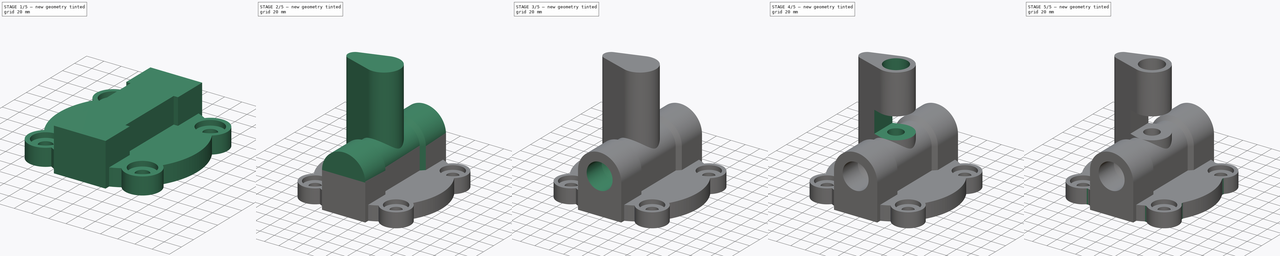
[diagram: build sequence overview — one tinted view per stage of 5, left to right]
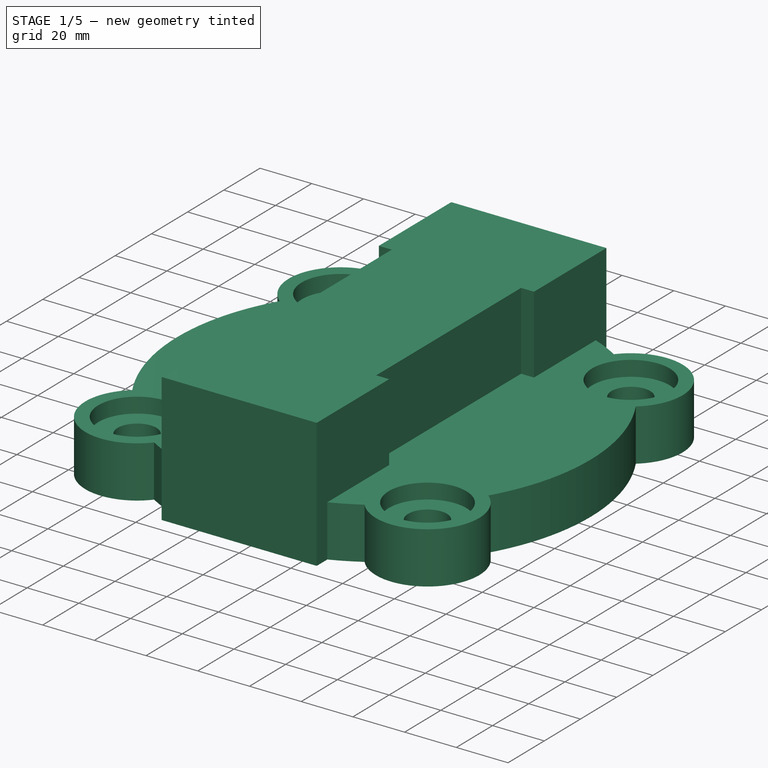
[diagram: stage 1 of 5 — iso view after this stage's code; geometry added in this stage tinted green]
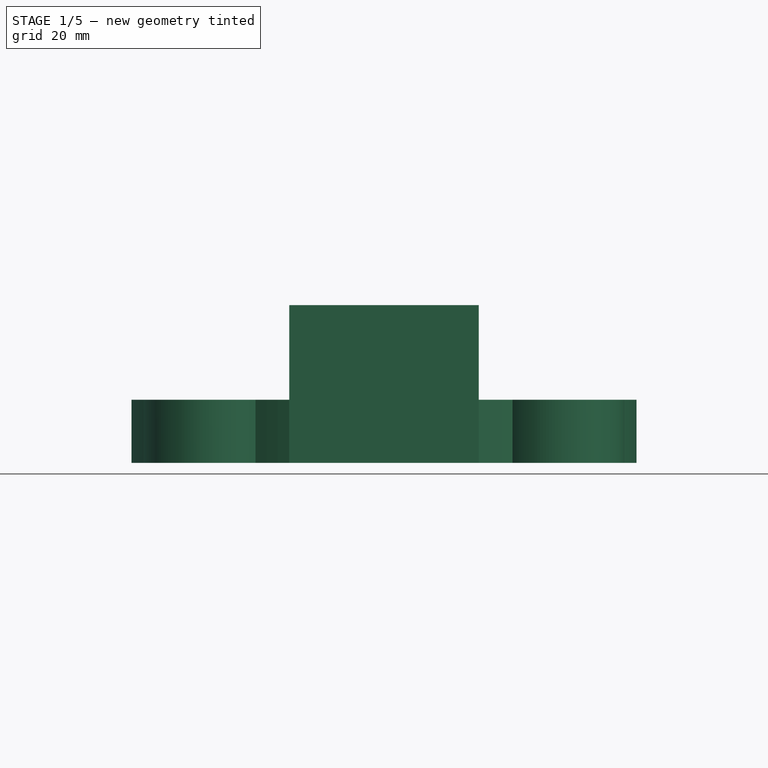
[diagram: stage 1 of 5 — front view after this stage's code; geometry added in this stage tinted green]
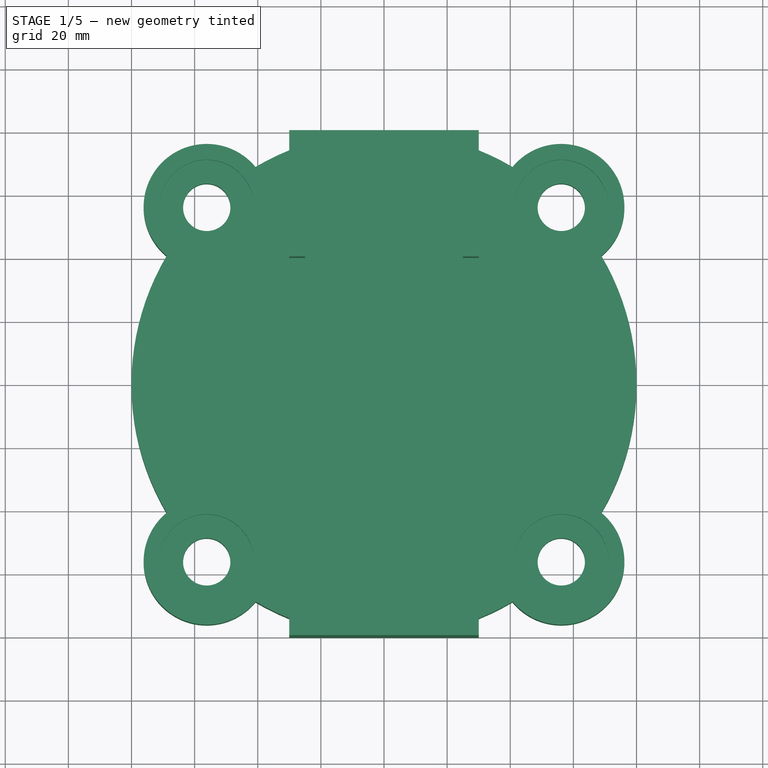
[diagram: stage 1 of 5 — top view after this stage's code; geometry added in this stage tinted green]
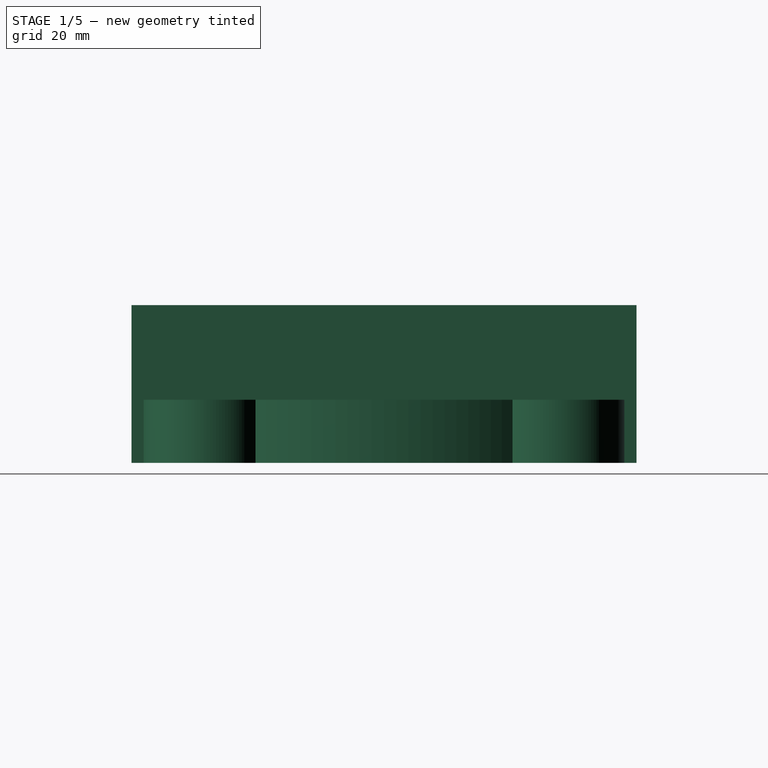
[diagram: stage 1 of 5 — right view after this stage's code; geometry added in this stage tinted green]
FCSTD DOCUMENT  (FreeCAD 0.21R33771 (Git))
Label: ex50
License: All rights reserved
LicenseURL: https://en.wikipedia.org/wiki/All_rights_reserved
objects: Sketcher::SketchObject×14, PartDesign::Pocket×6, PartDesign::Pad×4, PartDesign::Chamfer×3, PartDesign::Fillet×3, PartDesign::Groove×2, PartDesign::Hole×1, PartDesign::Revolution×1, PartDesign::Body×1
note: 55 computed .brp shape members not serialized (recipe doc carries the construction recipe); baked Part::Feature solids carry a one-line shape summary decoded from their .brp

FEATURE [Sketcher::SketchObject] Sketch
  FullyConstrained = true
  MapMode = 5
  Support = -> [XY_Plane]
  sketch-geometry (1):
    g0: Circle CenterX=0 CenterY=0 CenterZ=0 NormalX=0 NormalY=0 NormalZ=1 AngleXU=0 Radius=80
  constraints (2):
    c: Coincident(g0,g-1)
    c: Radius(g0) = 80
FEATURE [PartDesign::Pad] Pad
  Direction = (0,0,1)
  Length = 20
  Length2 = 10
  Profile = -> Sketch
  ReferenceAxis = -> Sketch [N_Axis]
  Type = 0
FEATURE [Sketcher::SketchObject] Sketch001
  FullyConstrained = false
  MapMode = 5
  Placement = pos=(0,0,20) rot=(0,0,1;0rad)
  Support = -> [Pad]
  sketch-geometry (9):
    g0: LineSegment StartX=-56.1633 StartY=56.1633 StartZ=0 EndX=-56.1633 EndY=-56.1633 EndZ=0
    g1: LineSegment StartX=-56.1633 StartY=-56.1633 StartZ=0 EndX=56.1633 EndY=-56.1633 EndZ=0
    g2: LineSegment StartX=56.1633 StartY=-56.1633 StartZ=0 EndX=56.1633 EndY=56.1633 EndZ=0
    g3: LineSegment StartX=56.1633 StartY=56.1633 StartZ=0 EndX=-56.1633 EndY=56.1633 EndZ=0
    g4: GeomPoint X=0 Y=0 Z=0
    g5: Circle CenterX=56.1633 CenterY=-56.1633 CenterZ=0 NormalX=0 NormalY=0 NormalZ=1 AngleXU=0 Radius=20
    g6: Circle CenterX=-56.1633 CenterY=-56.1633 CenterZ=0 NormalX=0 NormalY=0 NormalZ=1 AngleXU=0 Radius=20
    g7: Circle CenterX=-56.1633 CenterY=56.1633 CenterZ=0 NormalX=0 NormalY=0 NormalZ=1 AngleXU=0 Radius=20
    g8: Circle CenterX=56.1633 CenterY=56.1633 CenterZ=0 NormalX=0 NormalY=0 NormalZ=1 AngleXU=0 Radius=20
  constraints (19):
    c: Coincident(g0,g1)
    c: Coincident(g1,g2)
    c: Coincident(g2,g3)
    c: Coincident(g3,g0)
    c: Horizontal(g1)
    c: Horizontal(g3)
    c: Vertical(g0)
    c: Vertical(g2)
    c: Symmetric(g1,g0,g4)
    c: Coincident(g4,g-1)
    c: Equal(g2,g1)
    c: Coincident(g5,g1)
    c: Coincident(g6,g0)
    c: Coincident(g7,g0)
    c: Coincident(g8,g2)
    c: Equal(g8,g7)
    c: Equal(g7,g6)
    c: Equal(g6,g5)
    c: Radius(g8) = 20
FEATURE [PartDesign::Pad] Pad001
  BaseFeature = -> Pad
  Direction = (0,0,1)
  Length = 20
  Length2 = 10
  Profile = -> Sketch001
  ReferenceAxis = -> Sketch001 [N_Axis]
  Reversed = true
  Type = 0
FEATURE [Sketcher::SketchObject] Sketch002
  FullyConstrained = false
  MapMode = 5
  Placement = pos=(0,0,20) rot=(0,0,1;0rad)
  Support = -> [Pad]
  sketch-geometry (9):
    g0: LineSegment StartX=-56.1633 StartY=56.1633 StartZ=0 EndX=-56.1633 EndY=-56.1633 EndZ=0
    g1: LineSegment StartX=-56.1633 StartY=-56.1633 StartZ=0 EndX=56.1633 EndY=-56.1633 EndZ=0
    g2: LineSegment StartX=56.1633 StartY=-56.1633 StartZ=0 EndX=56.1633 EndY=56.1633 EndZ=0
    g3: LineSegment StartX=56.1633 StartY=56.1633 StartZ=0 EndX=-56.1633 EndY=56.1633 EndZ=0
    g4: GeomPoint X=0 Y=0 Z=0
    g5: Circle CenterX=56.1633 CenterY=-56.1633 CenterZ=0 NormalX=0 NormalY=0 NormalZ=1 AngleXU=0 Radius=7.5
    g6: Circle CenterX=-56.1633 CenterY=-56.1633 CenterZ=0 NormalX=0 NormalY=0 NormalZ=1 AngleXU=0 Radius=7.5
    g7: Circle CenterX=-56.1633 CenterY=56.1633 CenterZ=0 NormalX=0 NormalY=0 NormalZ=1 AngleXU=0 Radius=7.5
    g8: Circle CenterX=56.1633 CenterY=56.1633 CenterZ=0 NormalX=0 NormalY=0 NormalZ=1 AngleXU=0 Radius=7.5
  constraints (19):
    c: Coincident(g0,g1)
    c: Coincident(g1,g2)
    c: Coincident(g2,g3)
    c: Coincident(g3,g0)
    c: Horizontal(g1)
    c: Horizontal(g3)
    c: Vertical(g0)
    c: Vertical(g2)
    c: Symmetric(g1,g0,g4)
    c: Coincident(g4,g-1)
    c: Equal(g2,g1)
    c: Coincident(g5,g1)
    c: Coincident(g6,g0)
    c: Coincident(g7,g0)
    c: Coincident(g8,g2)
    c: Equal(g8,g7)
    c: Equal(g7,g6)
    c: Equal(g6,g5)
    c: Radius(g8) = 7.5
FEATURE [PartDesign::Hole] Hole
  BaseFeature = -> Pad001
  CustomThreadClearance = 0
  Depth = 25
  DepthType = 0
  Diameter = 15
  DrillForDepth = false
  DrillPoint = 1
  DrillPointAngle = 118
  HoleCutCountersinkAngle = 90
  HoleCutCustomValues = false
  HoleCutDepth = 5.9
  HoleCutDiameter = 30
  HoleCutType = 1
  ModelThread = false
  Profile = -> Sketch002
  Tapered = false
  TaperedAngle = 90
  ThreadClass = 0
  ThreadDepth = 25
  ThreadDepthType = 0
  ThreadDirection = 0
  ThreadFit = 0
  ThreadSize = 0
  ThreadType = 0
  Threaded = false
  UseCustomThreadClearance = false
FEATURE [Sketcher::SketchObject] Sketch003
  FullyConstrained = false
  MapMode = 5
  Support = -> [XY_Plane]
  sketch-geometry (15):
    g0: LineSegment StartX=-30 StartY=80 StartZ=0 EndX=-30 EndY=40 EndZ=0
    g1: LineSegment StartX=-30 StartY=40 StartZ=0 EndX=-25 EndY=40 EndZ=0
    g2: LineSegment StartX=30 StartY=40 StartZ=0 EndX=30 EndY=80 EndZ=0
    g3: LineSegment StartX=30 StartY=80 StartZ=0 EndX=-30 EndY=80 EndZ=0
    g4: GeomPoint X=0 Y=60 Z=0
    g5: LineSegment StartX=-30 StartY=-40 StartZ=0 EndX=-30 EndY=-80 EndZ=0
    g6: LineSegment StartX=-30 StartY=-80 StartZ=0 EndX=30 EndY=-80 EndZ=0
    g7: LineSegment StartX=30 StartY=-80 StartZ=0 EndX=30 EndY=-40 EndZ=0
    g8: LineSegment StartX=30 StartY=-40 StartZ=0 EndX=25 EndY=-40 EndZ=0
    g9: GeomPoint X=0 Y=-60 Z=0
    g10: LineSegment StartX=-25 StartY=-40 StartZ=0 EndX=-25 EndY=40 EndZ=0
    g11: LineSegment StartX=25 StartY=40 StartZ=0 EndX=25 EndY=-40 EndZ=0
    g12: GeomPoint X=0 Y=-21.9019 Z=0
    g13: LineSegment StartX=-25 StartY=-40 StartZ=0 EndX=-30 EndY=-40 EndZ=0
    g14: LineSegment StartX=25 StartY=40 StartZ=0 EndX=30 EndY=40 EndZ=0
  constraints (38):
    c: Coincident(g0,g1)
    c: Coincident(g14,g2)
    c: Coincident(g2,g3)
    c: Coincident(g3,g0)
    c: Horizontal(g1)
    c: Horizontal(g3)
    c: Vertical(g0)
    c: Vertical(g2)
    c: Symmetric(g14,g0,g4)
    c: PointOnObject(g4,g-2)
    c: Coincident(g5,g6)
    c: Coincident(g6,g7)
    c: Coincident(g7,g8)
    c: Coincident(g13,g5)
    c: Horizontal(g6)
    c: Horizontal(g8)
    c: Vertical(g5)
    c: Vertical(g7)
    c: Symmetric(g6,g5,g9)
    c: PointOnObject(g9,g-2)
    c: Vertical(g11)
    c: PointOnObject(g12,g-2)
    c: Coincident(g10,g13)
    c: Coincident(g11,g8)
    c: Coincident(g11,g14)
    c: Coincident(g10,g1)
    c: Equal(g3,g6)
    c: Equal(g0,g5)
    c: Equal(g1,g14)
    c: Equal(g14,g8)
    c: Equal(g8,g13)
    c: Equal(g10,g11)
    c: Horizontal(g1,g11)
    c: Symmetric(g1,g10,g-1)
    c: DistanceY(g6,g2) = 160
    c: DistanceY(g7,g2) = 80
    c: DistanceX(g0,g2) = 60
    c: DistanceX(g1,g11) = 50
FEATURE [PartDesign::Pad] Pad002
  BaseFeature = -> Hole
  Direction = (0,0,1)
  Length = 50
  Length2 = 10
  Profile = -> Sketch003
  ReferenceAxis = -> Sketch003 [N_Axis]
  Type = 0
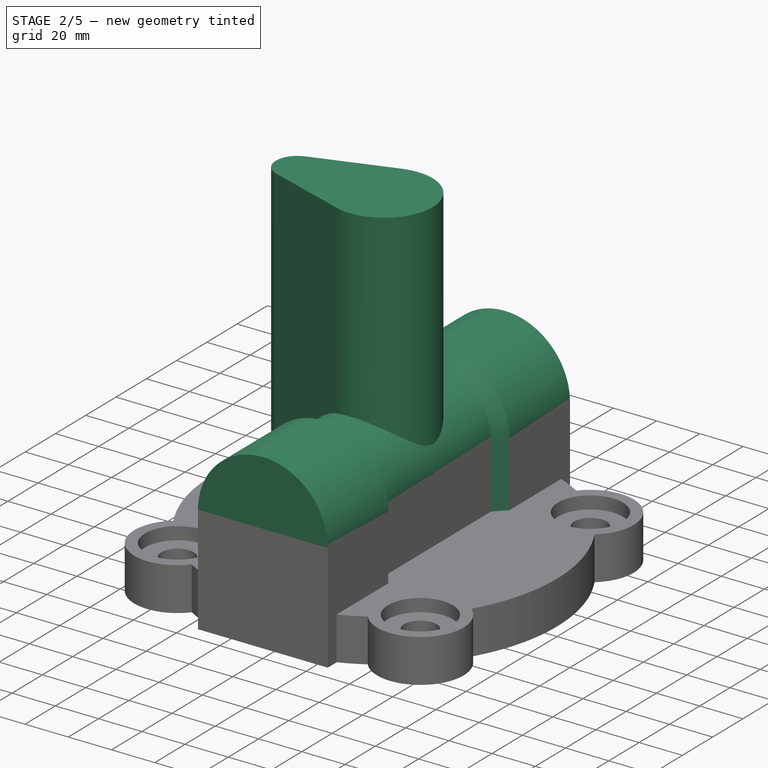
[diagram: stage 2 of 5 — iso view after this stage's code; geometry added in this stage tinted green]
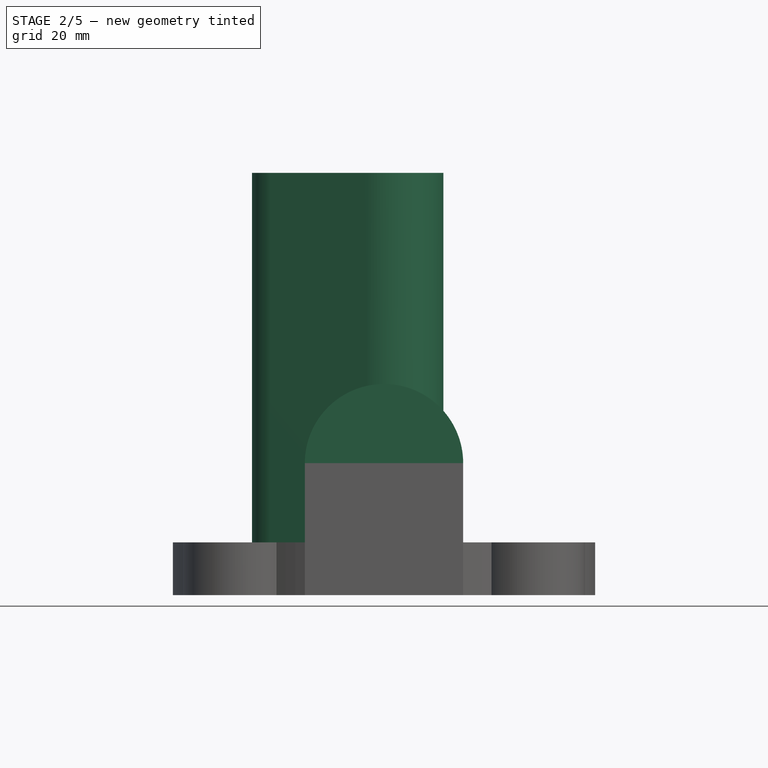
[diagram: stage 2 of 5 — front view after this stage's code; geometry added in this stage tinted green]
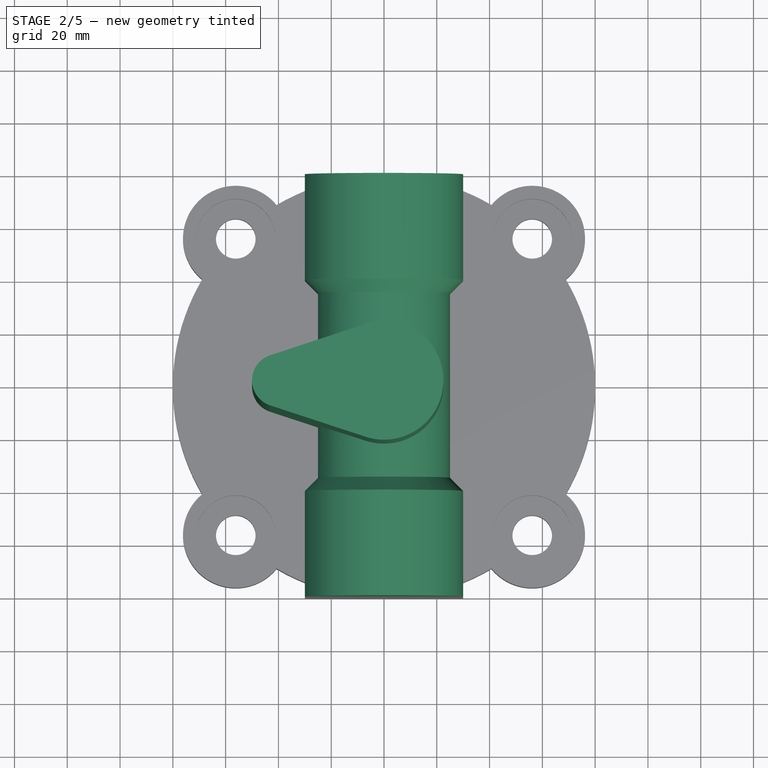
[diagram: stage 2 of 5 — top view after this stage's code; geometry added in this stage tinted green]
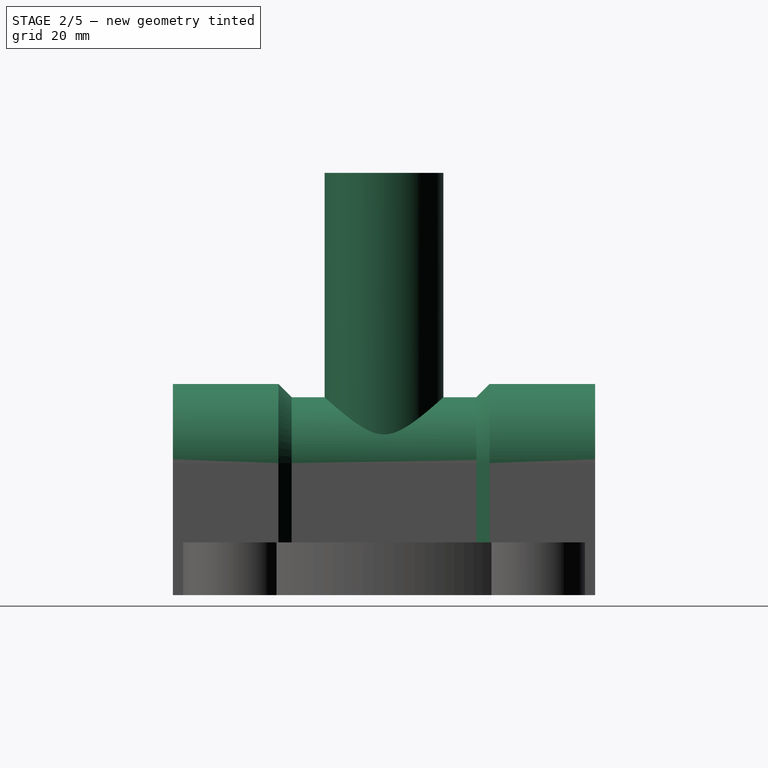
[diagram: stage 2 of 5 — right view after this stage's code; geometry added in this stage tinted green]
FEATURE [Sketcher::SketchObject] Sketch004
  ExternalGeometry = -> [Pad002]
  FullyConstrained = true
  MapMode = 5
  Placement = pos=(0,0,50) rot=(0,0,1;0rad)
  Support = -> [Pad002]
  sketch-geometry (8):
    g0: LineSegment StartX=30 StartY=80 StartZ=0 EndX=30 EndY=40 EndZ=0
    g1: LineSegment StartX=30 StartY=40 StartZ=0 EndX=25 EndY=40 EndZ=0
    g2: LineSegment StartX=25 StartY=40 StartZ=0 EndX=25 EndY=-40 EndZ=0
    g3: LineSegment StartX=25 StartY=-40 StartZ=0 EndX=30 EndY=-40 EndZ=0
    g4: LineSegment StartX=30 StartY=-40 StartZ=0 EndX=30 EndY=-80 EndZ=0
    g5: LineSegment StartX=30 StartY=-80 StartZ=0 EndX=0 EndY=-80 EndZ=0
    g6: LineSegment StartX=0 StartY=-80 StartZ=0 EndX=0 EndY=80 EndZ=0
    g7: LineSegment StartX=0 StartY=80 StartZ=0 EndX=30 EndY=80 EndZ=0
  constraints (18):
    c: Coincident(g-3,g0)
    c: Coincident(g0,g-4)
    c: Coincident(g0,g1)
    c: Coincident(g1,g-5)
    c: Coincident(g1,g2)
    c: Coincident(g2,g-6)
    c: Coincident(g2,g3)
    c: Coincident(g3,g-7)
    c: Coincident(g3,g4)
    c: Coincident(g4,g-7)
    c: Coincident(g4,g5)
    c: PointOnObject(g5,g-2)
    c: Horizontal(g5)
    c: Coincident(g5,g6)
    c: PointOnObject(g6,g-2)
    c: Coincident(g6,g7)
    c: Coincident(g7,g0)
    c: Horizontal(g7)
FEATURE [PartDesign::Revolution] Revolution
  Angle = 360
  Axis = (0,1,0)
  Base = (0,0,50)
  BaseFeature = -> Pad002
  Profile = -> Sketch004
  ReferenceAxis = -> Sketch004 [V_Axis]
  Reversed = true
FEATURE [PartDesign::Chamfer] Chamfer
  Angle = 45
  Base = -> Revolution [Edge113,Edge111]
  BaseFeature = -> Revolution
  ChamferType = 0
  FlipDirection = false
  Size = 4.99
  Size2 = 1
  SupportTransform = false
  UseAllEdges = false
FEATURE [Sketcher::SketchObject] Sketch005
  FullyConstrained = true
  MapMode = 5
  Support = -> [XY_Plane]
  sketch-geometry (4):
    g0: ArcOfCircle CenterX=0 CenterY=0 CenterZ=0 NormalX=0 NormalY=0 NormalZ=1 AngleXU=0 Radius=22.5 StartAngle=4.39457 EndAngle=8.17181
    g1: ArcOfCircle CenterX=-40 CenterY=0 CenterZ=0 NormalX=0 NormalY=0 NormalZ=1 AngleXU=0 Radius=10 StartAngle=1.88862 EndAngle=4.39457
    g2: LineSegment StartX=-7.03125 StartY=21.3731 StartZ=0 EndX=-43.125 EndY=9.49918 EndZ=0
    g3: LineSegment StartX=-43.125 StartY=-9.49918 StartZ=0 EndX=-7.03125 EndY=-21.3731 EndZ=0
  constraints (9):
    c: Tangent(g0,g2) = -1.5708
    c: Tangent(g2,g1) = -1.5708
    c: Tangent(g1,g3) = -1.5708
    c: Tangent(g3,g0) = -1.5708
    c: Coincident(g0,g-1)
    c: PointOnObject(g1,g-1)
    c: Radius(g0) = 22.5
    c: Radius(g1) = 10
    c: DistanceX(g1,g0) = 40
FEATURE [PartDesign::Pad] Pad003
  BaseFeature = -> Chamfer
  Direction = (0,0,1)
  Length = 160
  Length2 = 10
  Profile = -> Sketch005
  ReferenceAxis = -> Sketch005 [N_Axis]
  Type = 0
FEATURE [Sketcher::SketchObject] Sketch006
  FullyConstrained = true
  MapMode = 5
  Support = -> [XY_Plane]
  sketch-geometry (1):
    g0: Circle CenterX=0 CenterY=0 CenterZ=0 NormalX=0 NormalY=0 NormalZ=1 AngleXU=0 Radius=60
  constraints (2):
    c: Coincident(g0,g-1)
    c: Radius(g0) = 60
FEATURE [PartDesign::Pocket] Pocket
  BaseFeature = -> Pad003
  Direction = (0,0,-1)
  Length = 6
  Length2 = 5
  Profile = -> Sketch006
  ReferenceAxis = -> Sketch006 [N_Axis]
  Reversed = true
  Type = 0
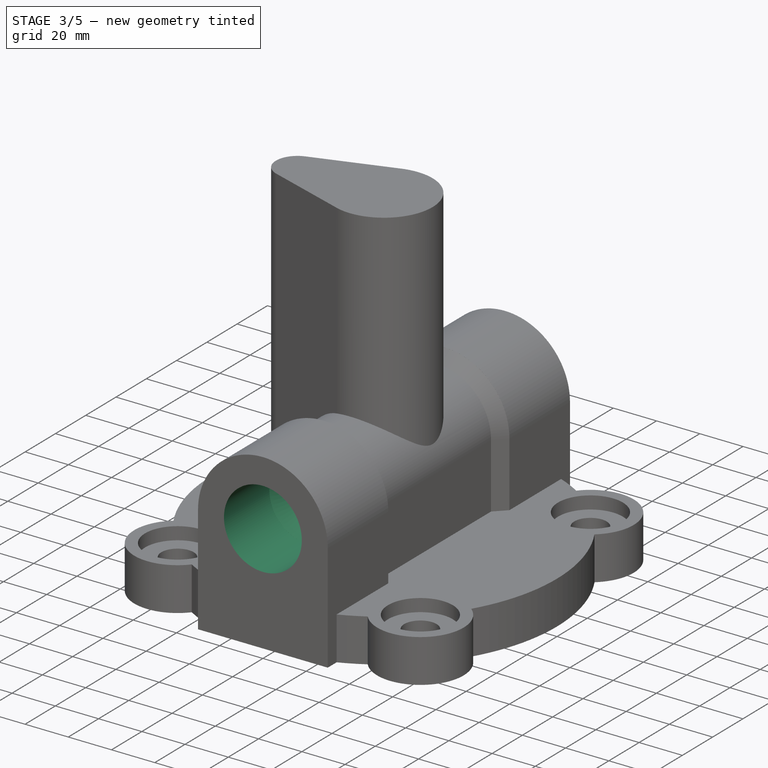
[diagram: stage 3 of 5 — iso view after this stage's code; geometry added in this stage tinted green]
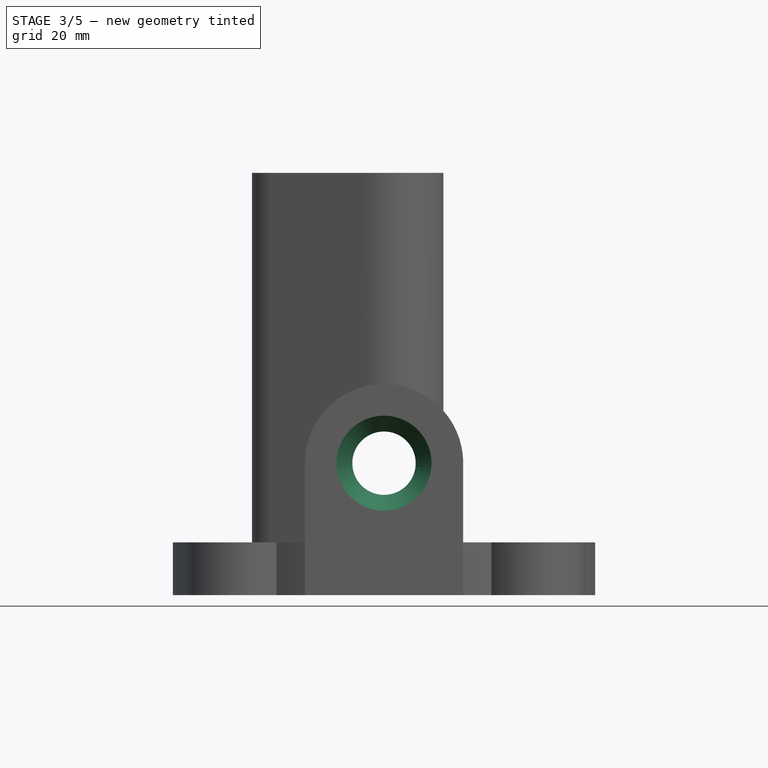
[diagram: stage 3 of 5 — front view after this stage's code; geometry added in this stage tinted green]
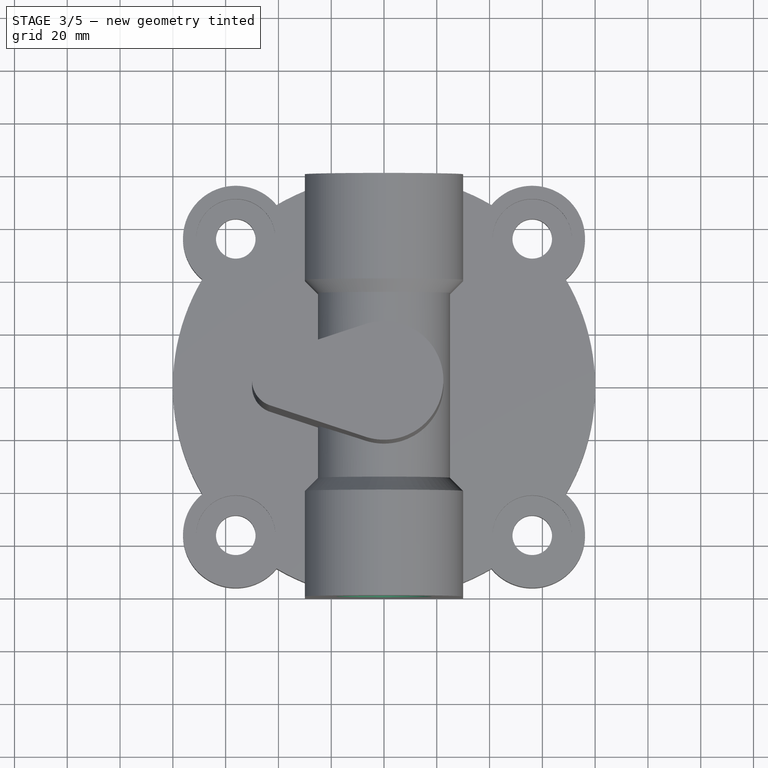
[diagram: stage 3 of 5 — top view after this stage's code; geometry added in this stage tinted green]
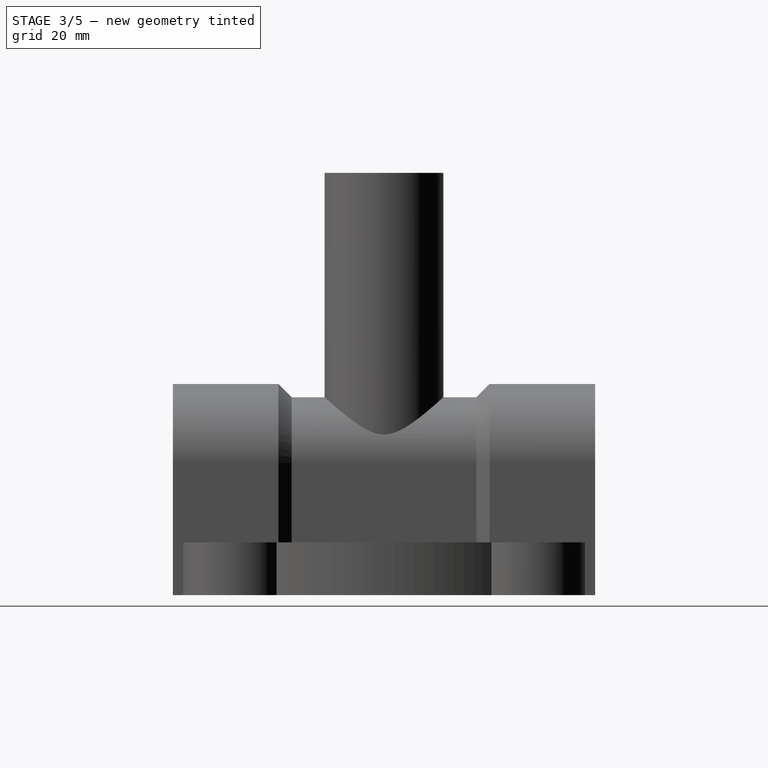
[diagram: stage 3 of 5 — right view after this stage's code; geometry added in this stage tinted green]
FEATURE [Sketcher::SketchObject] Sketch007
  ExternalGeometry = -> [Pocket]
  FullyConstrained = true
  MapMode = 5
  Placement = pos=(0,0,0) rot=(1,0,0;1.5708rad)
  Support = -> [XZ_Plane]
  sketch-geometry (1):
    g0: Circle CenterX=0 CenterY=50 CenterZ=0 NormalX=0 NormalY=0 NormalZ=1 AngleXU=0 Radius=12
  constraints (2):
    c: Coincident(g0,g-3)
    c: Radius(g0) = 12
FEATURE [PartDesign::Pocket] Pocket001
  BaseFeature = -> Pocket
  Direction = (0,1,2e-16)
  Length = 5
  Length2 = 5
  Midplane = true
  Profile = -> Sketch007
  ReferenceAxis = -> Sketch007 [N_Axis]
  Type = 1
FEATURE [Sketcher::SketchObject] Sketch008
  AttachmentOffset = pos=(0,0,80) rot=(0,0,1;0rad)
  ExternalGeometry = -> [Pocket]
  FullyConstrained = true
  MapMode = 5
  Placement = pos=(0,-80,-1.78e-14) rot=(1,0,0;1.5708rad)
  Support = -> [XZ_Plane]
  sketch-geometry (1):
    g0: Circle CenterX=0 CenterY=50 CenterZ=0 NormalX=0 NormalY=0 NormalZ=1 AngleXU=0 Radius=18
  constraints (2):
    c: Coincident(g0,g-3)
    c: Radius(g0) = 18
FEATURE [PartDesign::Pocket] Pocket002
  BaseFeature = -> Pocket001
  Direction = (0,1,2e-16)
  Length = 30
  Length2 = 5
  Profile = -> Sketch008
  ReferenceAxis = -> Sketch008 [N_Axis]
  Type = 0
FEATURE [PartDesign::Chamfer] Chamfer001
  Angle = 45
  Base = -> Pocket002 [Edge221]
  BaseFeature = -> Pocket002
  ChamferType = 0
  FlipDirection = false
  Size = 5.99
  Size2 = 1
  SupportTransform = false
  UseAllEdges = false
FEATURE [Sketcher::SketchObject] Sketch009
  AttachmentOffset = pos=(0,0,-80) rot=(0,0,1;0rad)
  ExternalGeometry = -> [Pocket]
  FullyConstrained = true
  MapMode = 5
  Placement = pos=(0,80,1.78e-14) rot=(1,0,0;1.5708rad)
  Support = -> [XZ_Plane]
  sketch-geometry (1):
    g0: Circle CenterX=0 CenterY=50 CenterZ=0 NormalX=0 NormalY=0 NormalZ=1 AngleXU=0 Radius=18
  constraints (2):
    c: Coincident(g0,g-3)
    c: Radius(g0) = 18
FEATURE [PartDesign::Pocket] Pocket003
  BaseFeature = -> Chamfer001
  Direction = (0,1,2e-16)
  Length = 30
  Length2 = 5
  Profile = -> Sketch009
  ReferenceAxis = -> Sketch009 [N_Axis]
  Reversed = true
  Type = 0
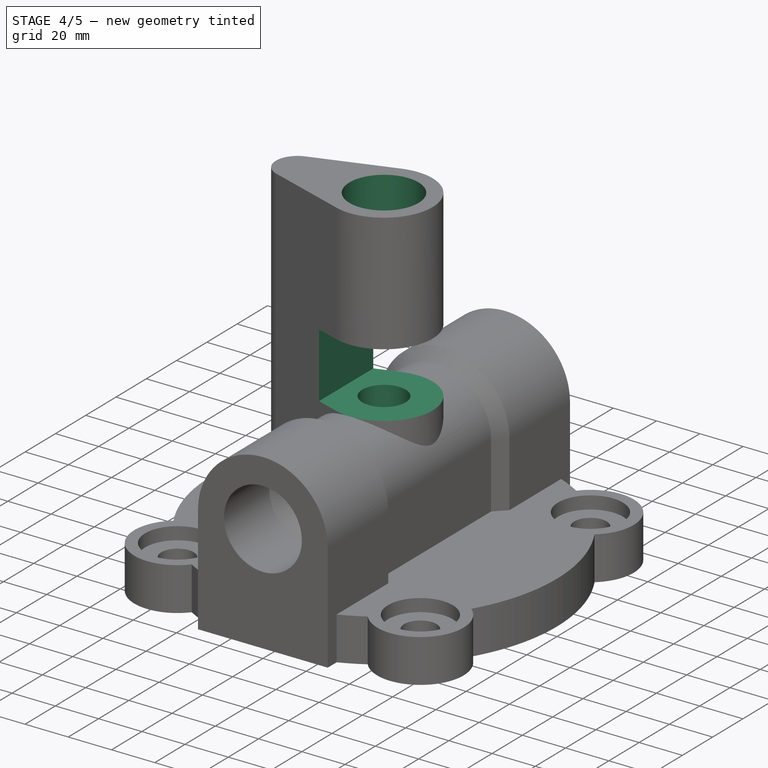
[diagram: stage 4 of 5 — iso view after this stage's code; geometry added in this stage tinted green]
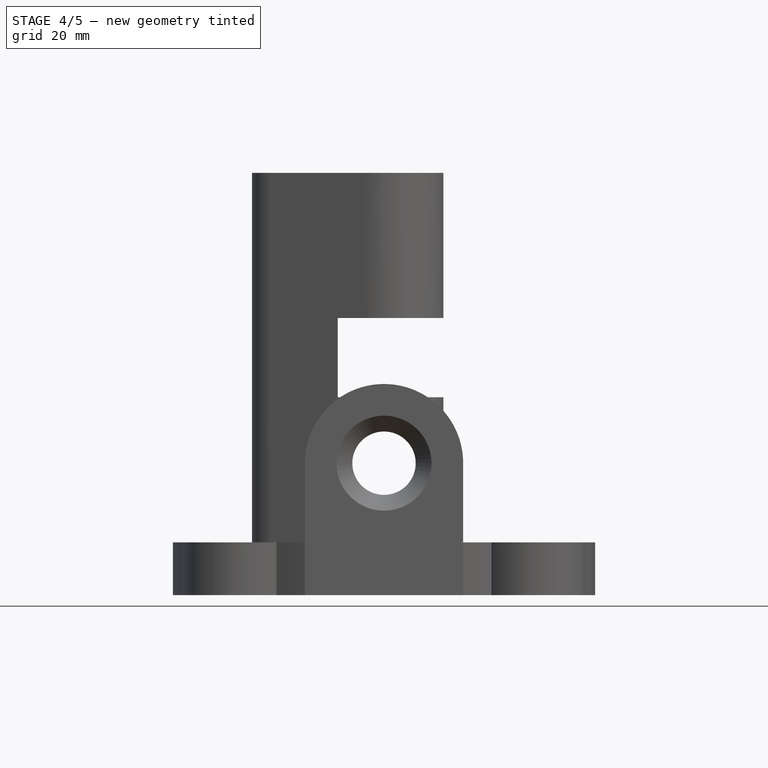
[diagram: stage 4 of 5 — front view after this stage's code; geometry added in this stage tinted green]
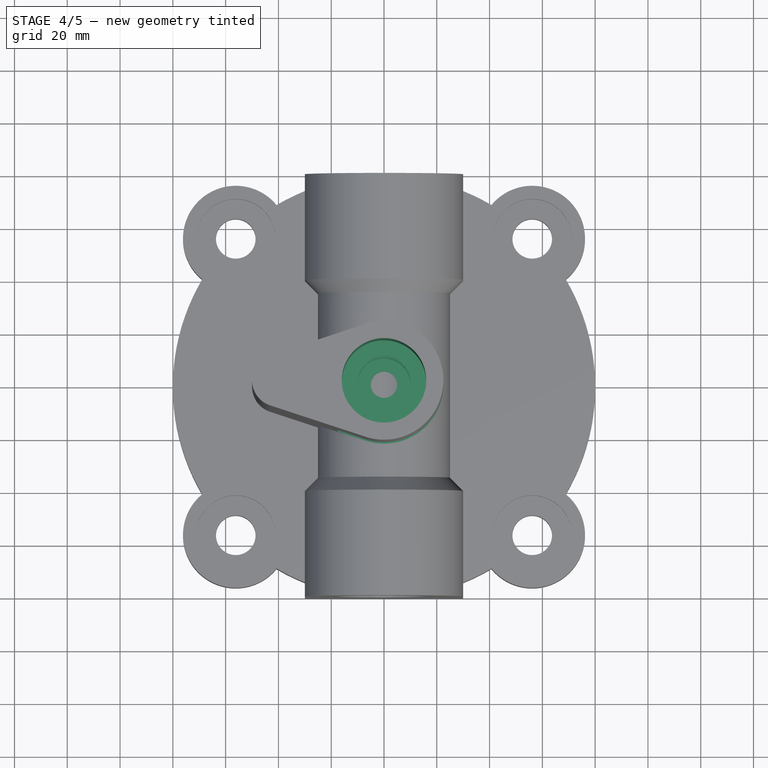
[diagram: stage 4 of 5 — top view after this stage's code; geometry added in this stage tinted green]
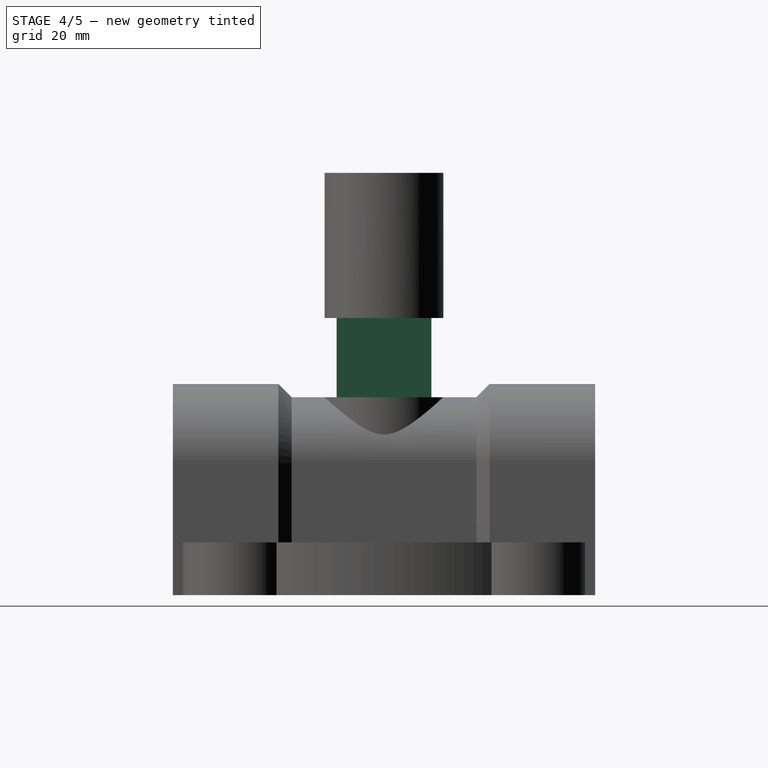
[diagram: stage 4 of 5 — right view after this stage's code; geometry added in this stage tinted green]
FEATURE [PartDesign::Chamfer] Chamfer002
  Angle = 45
  Base = -> Pocket003 [Edge3]
  BaseFeature = -> Pocket003
  ChamferType = 0
  FlipDirection = false
  Size = 5.99
  Size2 = 1
  SupportTransform = false
  UseAllEdges = false
FEATURE [Sketcher::SketchObject] Sketch010
  AttachmentOffset = pos=(0,-78,0) rot=(0,0,1;0rad)
  ExternalGeometry = -> [Chamfer002]
  FullyConstrained = false
  MapMode = 5
  Placement = pos=(0,1.73e-14,-78) rot=(1,0,0;1.5708rad)
  Support = -> [XZ_Plane]
  sketch-geometry (8):
    g0: LineSegment StartX=0 StartY=238.58 StartZ=0 EndX=16 EndY=238.58 EndZ=0
    g1: LineSegment StartX=16 StartY=238.58 StartZ=0 EndX=16 EndY=188.58 EndZ=0
    g2: LineSegment StartX=16 StartY=188.58 StartZ=0 EndX=10 EndY=188.58 EndZ=0
    g3: LineSegment StartX=10 StartY=188.58 StartZ=0 EndX=10 EndY=143.58 EndZ=0
    g4: LineSegment StartX=5 StartY=128 StartZ=0 EndX=0 EndY=128 EndZ=0
    g5: LineSegment StartX=0 StartY=128 StartZ=0 EndX=0 EndY=238.58 EndZ=0
    g6: LineSegment StartX=10 StartY=143.58 StartZ=0 EndX=5 EndY=143.58 EndZ=0
    g7: LineSegment StartX=5 StartY=143.58 StartZ=0 EndX=5 EndY=128 EndZ=0
  constraints (22):
    c: Horizontal(g0)
    c: Coincident(g0,g1)
    c: Vertical(g1)
    c: Coincident(g1,g2)
    c: Horizontal(g2)
    c: Coincident(g2,g3)
    c: Coincident(g4,g-3)
    c: Coincident(g4,g5)
    c: Coincident(g5,g0)
    c: Vertical(g5)
    c: Horizontal(g4)
    c: Vertical(g3)
    c: DistanceY(g1,g0) = 50
    c: DistanceX(g0,g0) = 16
    c: Distance(g2,g5) = 10
    c: Horizontal(g6)
    c: Coincident(g7,g4)
    c: Vertical(g7)
    c: DistanceX(g4,g4) = 5
    c: Coincident(g6,g7)
    c: Coincident(g3,g6)
    c: DistanceY(g3,g2) = 45
FEATURE [Sketcher::SketchObject] Sketch011
  FullyConstrained = false
  MapMode = 5
  Placement = pos=(0,0,0) rot=(1,0,0;1.5708rad)
  Support = -> [XZ_Plane]
  sketch-geometry (4):
    g0: LineSegment StartX=-17.5 StartY=105 StartZ=0 EndX=59.2642 EndY=105 EndZ=0
    g1: LineSegment StartX=59.2642 StartY=105 StartZ=0 EndX=59.2642 EndY=75 EndZ=0
    g2: LineSegment StartX=59.2642 StartY=75 StartZ=0 EndX=-17.5 EndY=75 EndZ=0
    g3: LineSegment StartX=-17.5 StartY=75 StartZ=0 EndX=-17.5 EndY=105 EndZ=0
  constraints (10):
    c: Coincident(g0,g1)
    c: Coincident(g1,g2)
    c: Coincident(g2,g3)
    c: Coincident(g3,g0)
    c: Horizontal(g0)
    c: Horizontal(g2)
    c: Vertical(g1)
    c: Vertical(g3)
    c: DistanceY(g1,g1) = 30
    c: Distance(g-1,g2) = 75
FEATURE [PartDesign::Groove] Groove
  Angle = 360
  Axis = (0,-2e-16,1)
  Base = (0,1.73e-14,-78)
  BaseFeature = -> Chamfer002
  Profile = -> Sketch010
  ReferenceAxis = -> Sketch010 [V_Axis]
FEATURE [PartDesign::Pocket] Pocket004
  BaseFeature = -> Groove
  Direction = (0,1,2e-16)
  Length = 45
  Length2 = 5
  Midplane = true
  Profile = -> Sketch011
  ReferenceAxis = -> Sketch011 [N_Axis]
  Type = 0
FEATURE [Sketcher::SketchObject] Sketch012
  ExternalGeometry = -> [Pocket004]
  FullyConstrained = true
  MapMode = 5
  Placement = pos=(0,0,0) rot=(1,0,0;1.5708rad)
  Support = -> [XZ_Plane]
  sketch-geometry (4):
    g0: LineSegment StartX=-32 StartY=152 StartZ=0 EndX=-27.5 EndY=147.5 EndZ=0
    g1: LineSegment StartX=-27.5 StartY=147.5 StartZ=0 EndX=-27.5 EndY=0 EndZ=0
    g2: LineSegment StartX=-27.5 StartY=0 StartZ=0 EndX=-32 EndY=0 EndZ=0
    g3: LineSegment StartX=-32 StartY=0 StartZ=0 EndX=-32 EndY=152 EndZ=0
  constraints (12):
    c: Coincident(g1,g0)
    c: PointOnObject(g1,g-1)
    c: Vertical(g1)
    c: Coincident(g2,g1)
    c: PointOnObject(g2,g-1)
    c: Coincident(g3,g0)
    c: Vertical(g3)
    c: Distance(g0,g3) = 4.5
    c: Angle(g3,g0) = 0.785398
    c: Coincident(g2,g3)
    c: DistanceX(g2,g-1) = 32
    c: Distance(g0,g-3) = 8
FEATURE [PartDesign::Groove] Groove001
  Angle = 360
  Axis = (0,-2e-16,1)
  Base = (-32,0,0)
  BaseFeature = -> Pocket004
  Profile = -> Sketch012
  ReferenceAxis = -> Sketch012 [Edge4]
  Reversed = true
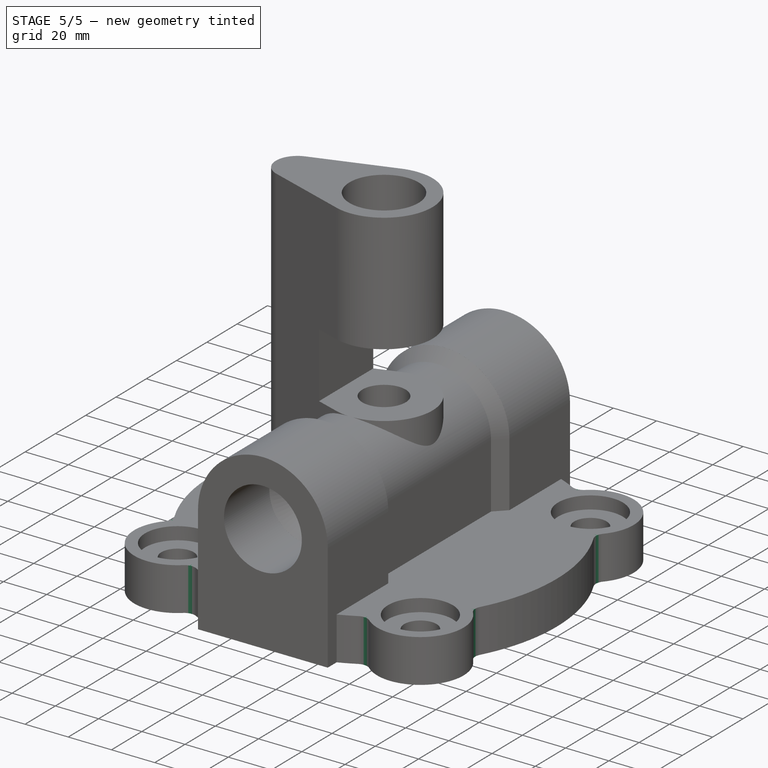
[diagram: stage 5 of 5 — iso view after this stage's code; geometry added in this stage tinted green]
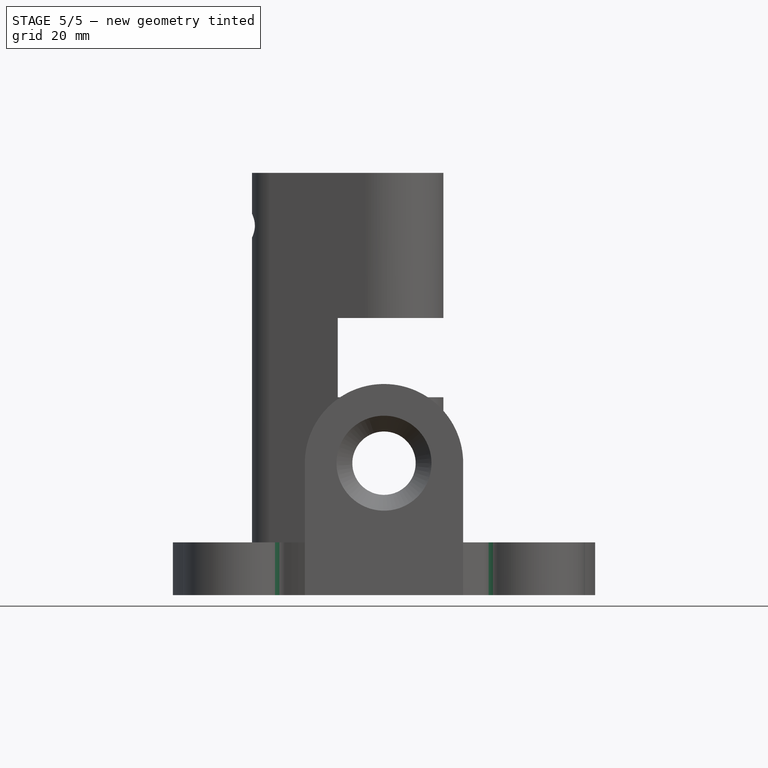
[diagram: stage 5 of 5 — front view after this stage's code; geometry added in this stage tinted green]
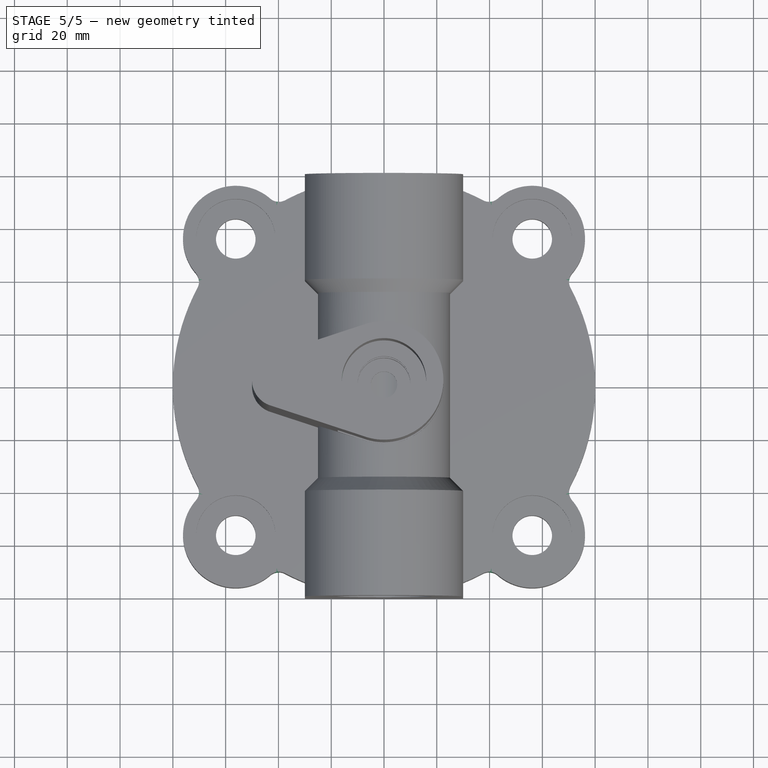
[diagram: stage 5 of 5 — top view after this stage's code; geometry added in this stage tinted green]
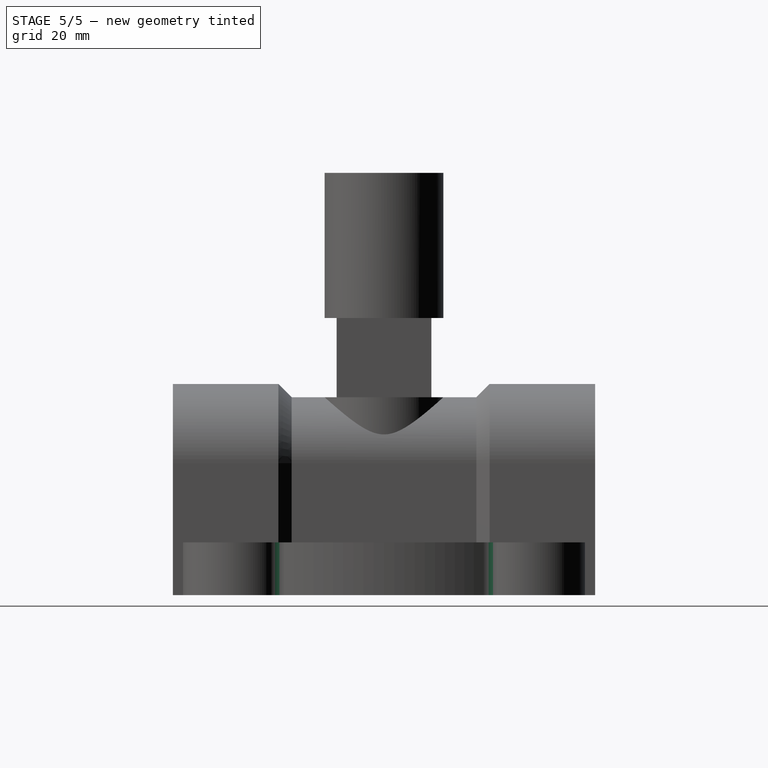
[diagram: stage 5 of 5 — right view after this stage's code; geometry added in this stage tinted green]
FEATURE [Sketcher::SketchObject] Sketch013
  ExternalGeometry = -> [Groove001]
  FullyConstrained = true
  MapMode = 5
  Placement = pos=(0,0,0) rot=(0.57735,0.57735,0.57735;2.0944rad)
  Support = -> [YZ_Plane]
  sketch-geometry (1):
    g0: Circle CenterX=0 CenterY=140 CenterZ=0 NormalX=0 NormalY=0 NormalZ=1 AngleXU=0 Radius=4.5
  constraints (3):
    c: PointOnObject(g0,g-2)
    c: Radius(g0) = 4.5
    c: Distance(g0,g-3) = 20
FEATURE [PartDesign::Pocket] Pocket005
  BaseFeature = -> Groove001
  Direction = (-1,2e-16,-3e-16)
  Length = 5
  Length2 = 5
  Profile = -> Sketch013
  ReferenceAxis = -> Sketch013 [N_Axis]
  Type = 1
FEATURE [PartDesign::Fillet] Fillet
  Base = -> Pocket005 [Edge161,Edge207,Edge210,Edge146]
  BaseFeature = -> Pocket005
  Radius = 5
  SupportTransform = false
  UseAllEdges = false
FEATURE [PartDesign::Fillet] Fillet001
  Base = -> Fillet [Edge266,Edge271,Edge272]
  BaseFeature = -> Fillet
  Radius = 5
  SupportTransform = false
  UseAllEdges = false
FEATURE [PartDesign::Fillet] Fillet002
  Base = -> Fillet001 [Edge125]
  BaseFeature = -> Fillet001
  Radius = 5
  SupportTransform = false
  UseAllEdges = false
FEATURE [PartDesign::Body] Body
  Group = -> [Sketch,Pad,Sketch001,Pad001,Sketch002,Hole,Sketch003,Pad002,Sketch004,Revolution,Chamfer,Sketch005,Pad003,Sketch006,Pocket,Sketch007,Pocket001,Sketch008,Pocket002,Chamfer001,Sketch009,Pocket003,Chamfer002,Sketch010,Sketch011,Groove,Pocket004,Sketch012,Groove001,Sketch013,Pocket005,Fillet,Fillet001,Fillet002]
  Origin = -> Origin
  Tip = -> Fillet002
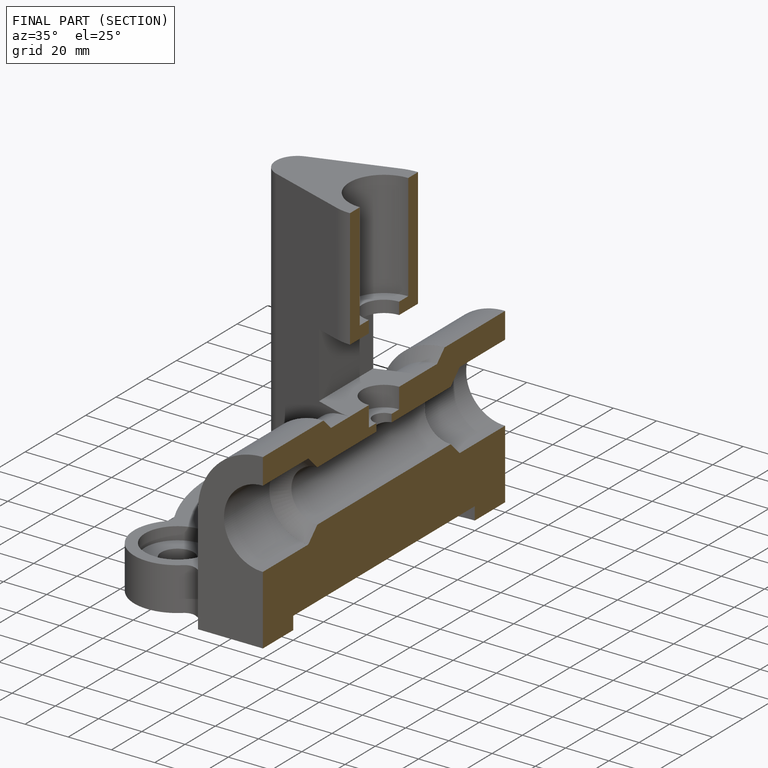
[diagram: finished part — half-section view (interior)]
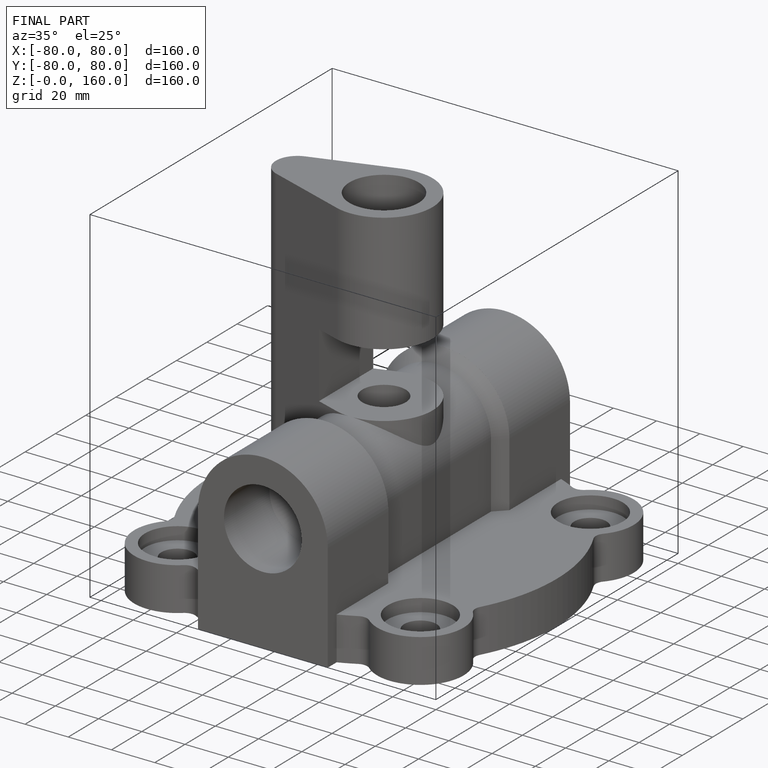
[diagram: finished part — iso view with bounding-box wireframe]
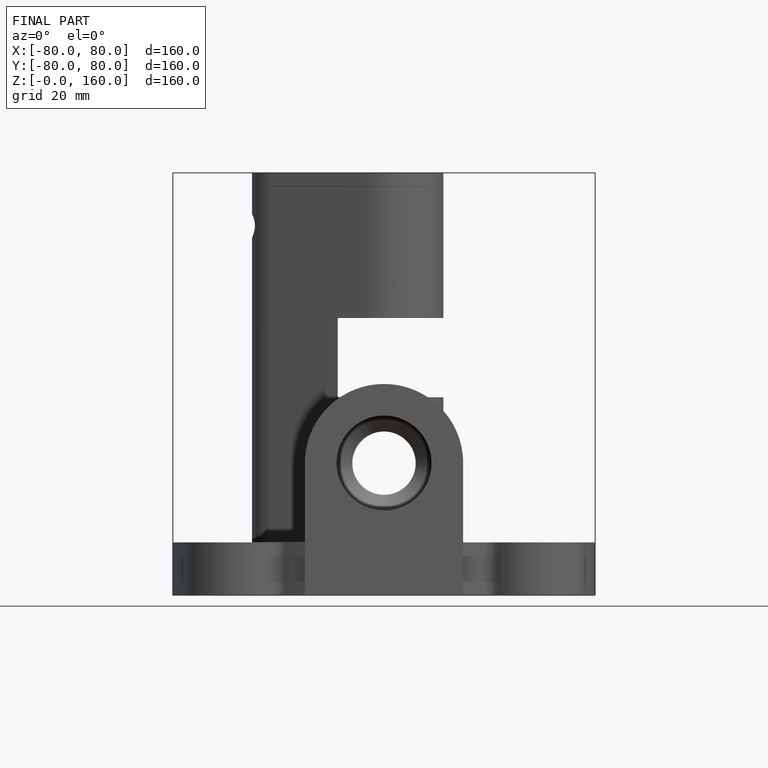
[diagram: finished part — front view with bounding-box wireframe]
